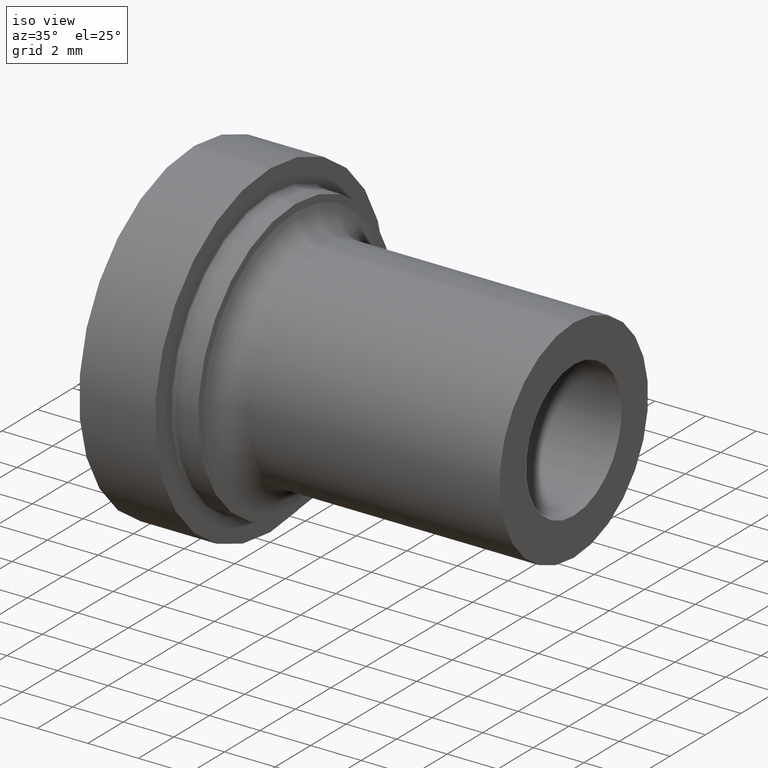
[diagram: clean part render]
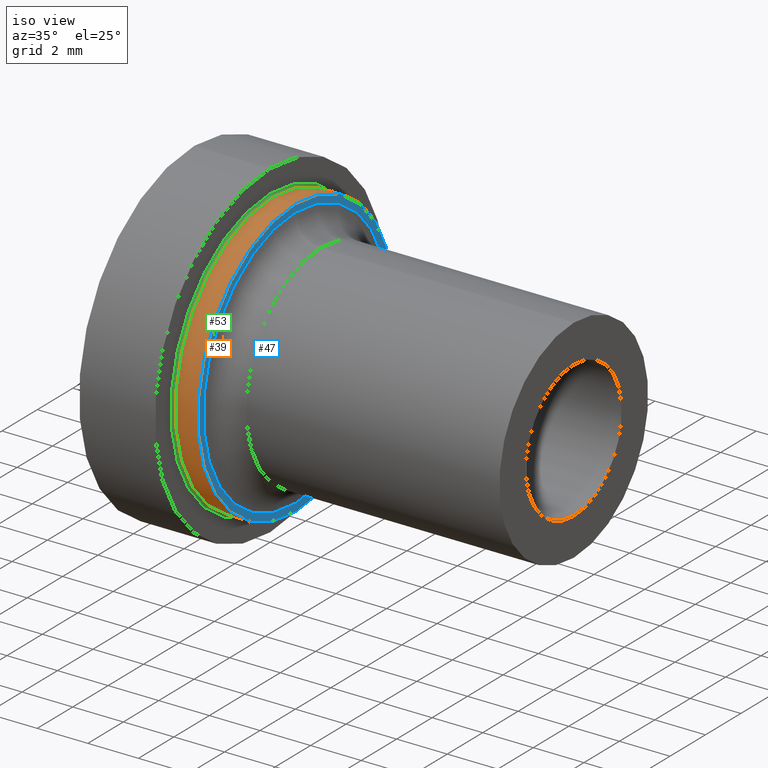
[diagram: same view with three faces highlighted in distinct colors, each labeled with its STEP entity id]
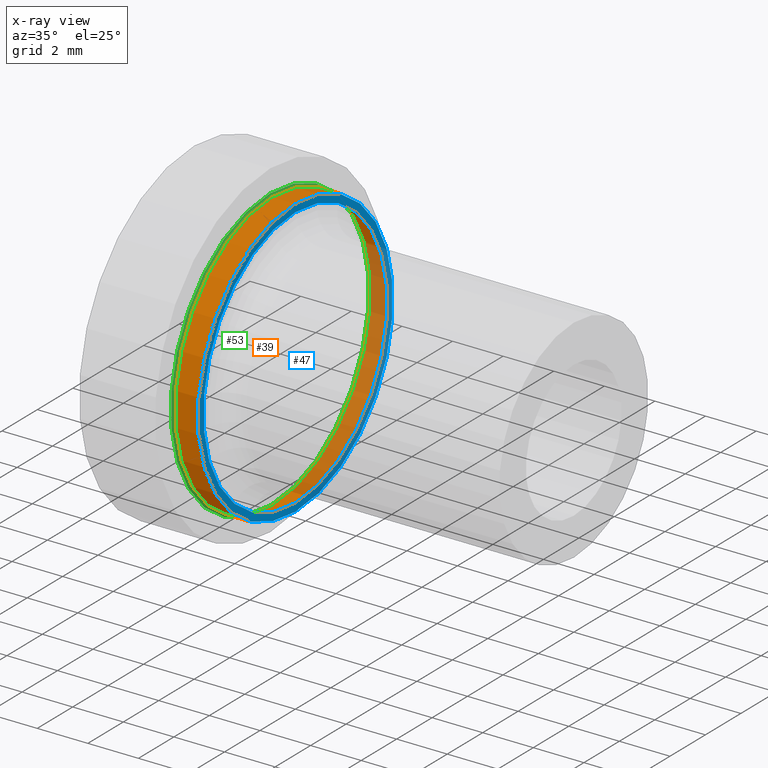
[diagram: x-ray of the same camera — body ghosted, the three highlighted faces saturated]
A machine part, iso view with three faces highlighted in distinct colors.
The next image is the same camera in x-ray (body ghosted, the three faces saturated) — at least one of them is partly hidden behind the body in this view.
Their STEP definitions:

[orange] entity #39 — the highlighted cylindrical surface (bore or boss wall) has radius 5.5 mm, axis along (1, -0, -0).
#39 = ADVANCED_FACE( '', ( #84, #85 ), #86, .T. );
#84 = FACE_OUTER_BOUND( '', #143, .T. );
#85 = FACE_OUTER_BOUND( '', #144, .T. );
#86 = CYLINDRICAL_SURFACE( '', #145, 5.50000000000000 );
#143 = EDGE_LOOP( '', ( #198 ) );
#144 = EDGE_LOOP( '', ( #199 ) );
#145 = AXIS2_PLACEMENT_3D( '', #200, #201, #202 );
#198 = ORIENTED_EDGE( '', *, *, #273, .T. );
#199 = ORIENTED_EDGE( '', *, *, #274, .T. );
#200 = CARTESIAN_POINT( '', ( -15.0000000000000, 0.000000000000000, 0.000000000000000 ) );
#201 = DIRECTION( '', ( 1.00000000000000, -0.000000000000000, -0.000000000000000 ) );
#202 = DIRECTION( '', ( 0.000000000000000, 0.000000000000000, 1.00000000000000 ) );
#273 = EDGE_CURVE( '', #301, #301, #302, .F. );
#274 = EDGE_CURVE( '', #303, #303, #304, .T. );
#301 = VERTEX_POINT( '', #340 );
#302 = CIRCLE( '', #341, 5.50000000000000 );
#303 = VERTEX_POINT( '', #342 );
#304 = CIRCLE( '', #343, 5.50000000000000 );
#340 = CARTESIAN_POINT( '', ( -11.9000000000000, 0.000000000000000, 5.50000000000000 ) );
#341 = AXIS2_PLACEMENT_3D( '', #379, #380, #381 );
#342 = CARTESIAN_POINT( '', ( -11.0000000000000, 0.000000000000000, 5.50000000000000 ) );
#343 = AXIS2_PLACEMENT_3D( '', #382, #383, #384 );
#379 = CARTESIAN_POINT( '', ( -11.9000000000000, 0.000000000000000, 0.000000000000000 ) );
#380 = DIRECTION( '', ( -1.00000000000000, 0.000000000000000, 0.000000000000000 ) );
#381 = DIRECTION( '', ( 0.000000000000000, 0.000000000000000, 1.00000000000000 ) );
#382 = CARTESIAN_POINT( '', ( -11.0000000000000, 0.000000000000000, 0.000000000000000 ) );
#383 = DIRECTION( '', ( -1.00000000000000, 0.000000000000000, 0.000000000000000 ) );
#384 = DIRECTION( '', ( 0.000000000000000, 0.000000000000000, 1.00000000000000 ) );

[blue] entity #47 — the highlighted planar face has unit normal (-1, 0, 0).
#47 = ADVANCED_FACE( '', ( #100, #101 ), #102, .F. );
#100 = FACE_OUTER_BOUND( '', #159, .T. );
#101 = FACE_BOUND( '', #160, .T. );
#102 = PLANE( '', #161 );
#159 = EDGE_LOOP( '', ( #222 ) );
#160 = EDGE_LOOP( '', ( #223 ) );
#161 = AXIS2_PLACEMENT_3D( '', #224, #225, #226 );
#222 = ORIENTED_EDGE( '', *, *, #274, .F. );
#223 = ORIENTED_EDGE( '', *, *, #284, .T. );
#224 = CARTESIAN_POINT( '', ( -11.0000000000000, 0.000000000000000, 5.20000000000000 ) );
#225 = DIRECTION( '', ( -1.00000000000000, 0.000000000000000, 0.000000000000000 ) );
#226 = DIRECTION( '', ( 0.000000000000000, 0.000000000000000, 1.00000000000000 ) );
#274 = EDGE_CURVE( '', #303, #303, #304, .T. );
#284 = EDGE_CURVE( '', #319, #319, #320, .T. );
#303 = VERTEX_POINT( '', #342 );
#304 = CIRCLE( '', #343, 5.50000000000000 );
#319 = VERTEX_POINT( '', #358 );
#320 = CIRCLE( '', #359, 5.20000000000000 );
#342 = CARTESIAN_POINT( '', ( -11.0000000000000, 0.000000000000000, 5.50000000000000 ) );
#343 = AXIS2_PLACEMENT_3D( '', #382, #383, #384 );
#358 = CARTESIAN_POINT( '', ( -11.0000000000000, 0.000000000000000, 5.20000000000000 ) );
#359 = AXIS2_PLACEMENT_3D( '', #400, #401, #402 );
#382 = CARTESIAN_POINT( '', ( -11.0000000000000, 0.000000000000000, 0.000000000000000 ) );
#383 = DIRECTION( '', ( -1.00000000000000, 0.000000000000000, 0.000000000000000 ) );
#384 = DIRECTION( '', ( 0.000000000000000, 0.000000000000000, 1.00000000000000 ) );
#400 = CARTESIAN_POINT( '', ( -11.0000000000000, 0.000000000000000, 0.000000000000000 ) );
#401 = DIRECTION( '', ( -1.00000000000000, 0.000000000000000, 0.000000000000000 ) );
#402 = DIRECTION( '', ( 0.000000000000000, 0.000000000000000, 1.00000000000000 ) );

[green] entity #53 — the highlighted toroidal blend (fillet) surface has major radius 5.6 mm and minor (blend) radius 0.1 mm.
#53 = ADVANCED_FACE( '', ( #112, #113 ), #114, .F. );
#112 = FACE_OUTER_BOUND( '', #171, .T. );
#113 = FACE_OUTER_BOUND( '', #172, .T. );
#114 = TOROIDAL_SURFACE( '', #173, 5.60000000000000, 0.100000000000000 );
#171 = EDGE_LOOP( '', ( #240 ) );
#172 = EDGE_LOOP( '', ( #241 ) );
#173 = AXIS2_PLACEMENT_3D( '', #242, #243, #244 );
#240 = ORIENTED_EDGE( '', *, *, #273, .F. );
#241 = ORIENTED_EDGE( '', *, *, #282, .F. );
#242 = CARTESIAN_POINT( '', ( -11.9000000000000, 0.000000000000000, 0.000000000000000 ) );
#243 = DIRECTION( '', ( -1.00000000000000, 0.000000000000000, 0.000000000000000 ) );
#244 = DIRECTION( '', ( 0.000000000000000, 0.000000000000000, 1.00000000000000 ) );
#273 = EDGE_CURVE( '', #301, #301, #302, .F. );
#282 = EDGE_CURVE( '', #316, #316, #317, .T. );
#301 = VERTEX_POINT( '', #340 );
#302 = CIRCLE( '', #341, 5.50000000000000 );
#316 = VERTEX_POINT( '', #355 );
#317 = CIRCLE( '', #356, 5.60000000000000 );
#340 = CARTESIAN_POINT( '', ( -11.9000000000000, 0.000000000000000, 5.50000000000000 ) );
#341 = AXIS2_PLACEMENT_3D( '', #379, #380, #381 );
#355 = CARTESIAN_POINT( '', ( -12.0000000000000, 0.000000000000000, 5.60000000000000 ) );
#356 = AXIS2_PLACEMENT_3D( '', #397, #398, #399 );
#379 = CARTESIAN_POINT( '', ( -11.9000000000000, 0.000000000000000, 0.000000000000000 ) );
#380 = DIRECTION( '', ( -1.00000000000000, 0.000000000000000, 0.000000000000000 ) );
#381 = DIRECTION( '', ( 0.000000000000000, 0.000000000000000, 1.00000000000000 ) );
#397 = CARTESIAN_POINT( '', ( -12.0000000000000, 0.000000000000000, 0.000000000000000 ) );
#398 = DIRECTION( '', ( -1.00000000000000, 0.000000000000000, 0.000000000000000 ) );
#399 = DIRECTION( '', ( 0.000000000000000, 0.000000000000000, 1.00000000000000 ) );